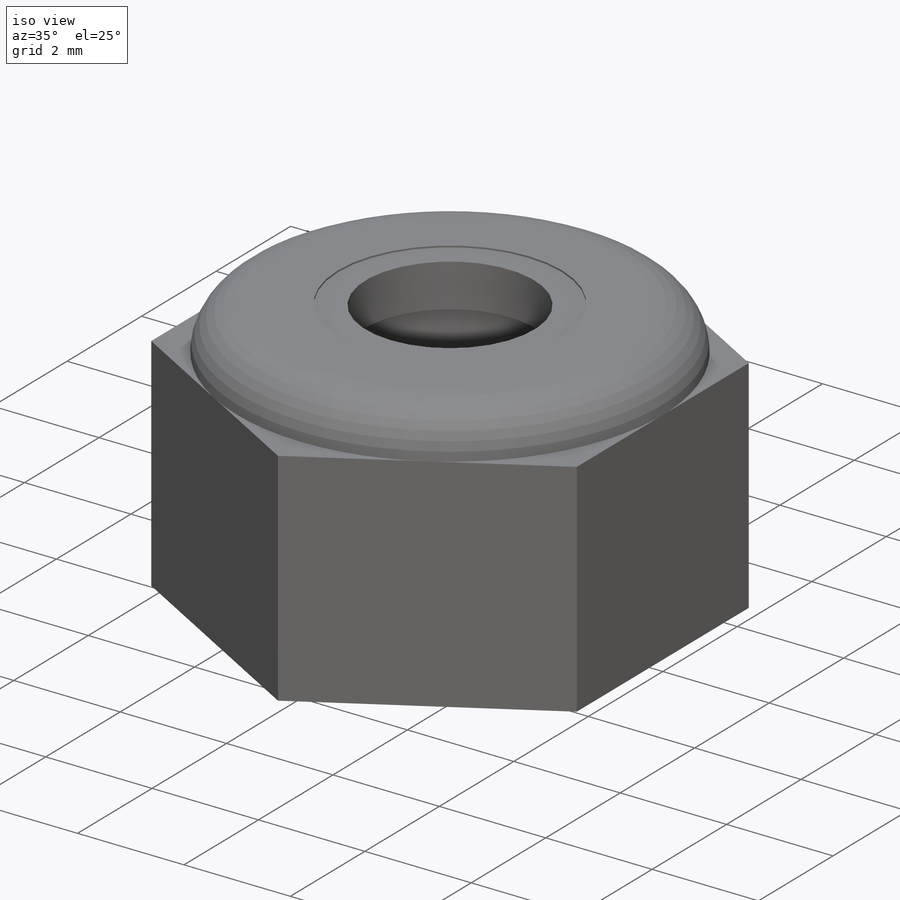
[diagram: iso view]
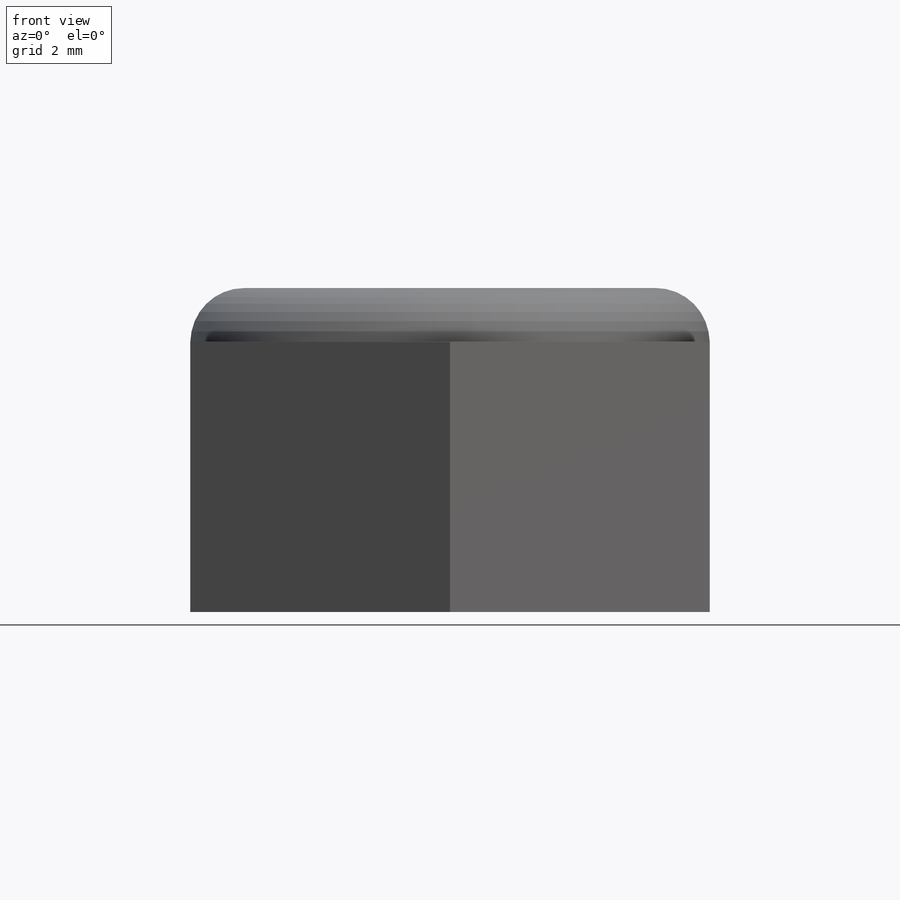
[diagram: front view]
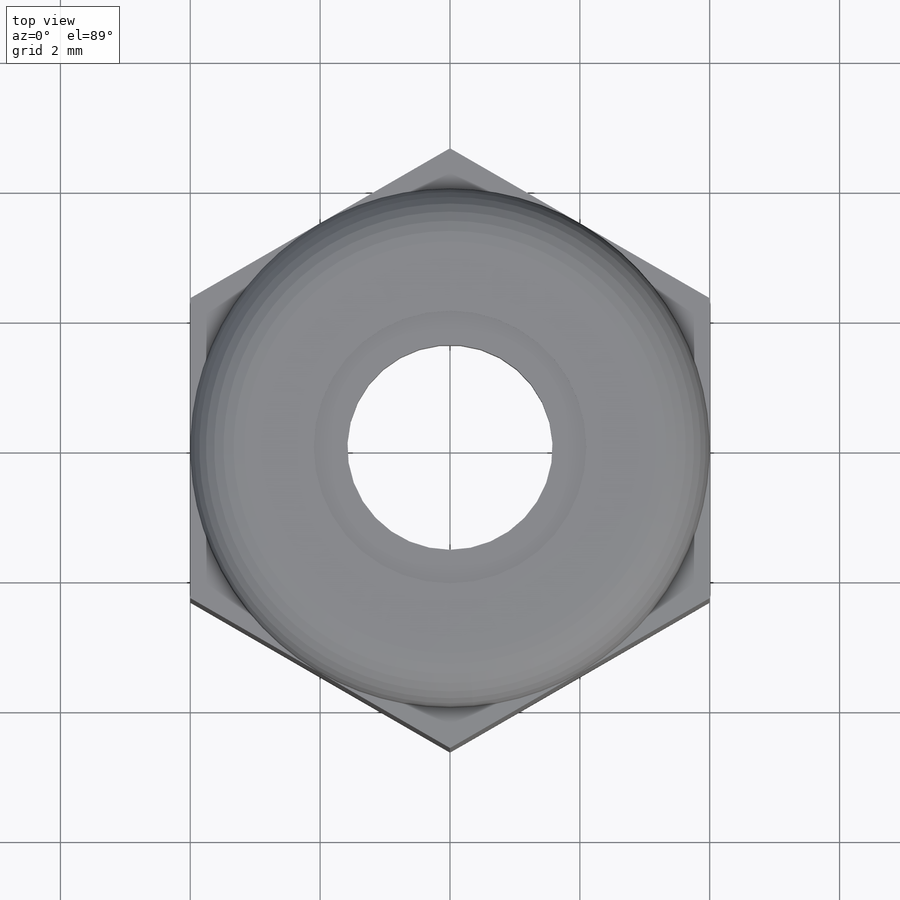
[diagram: top view]
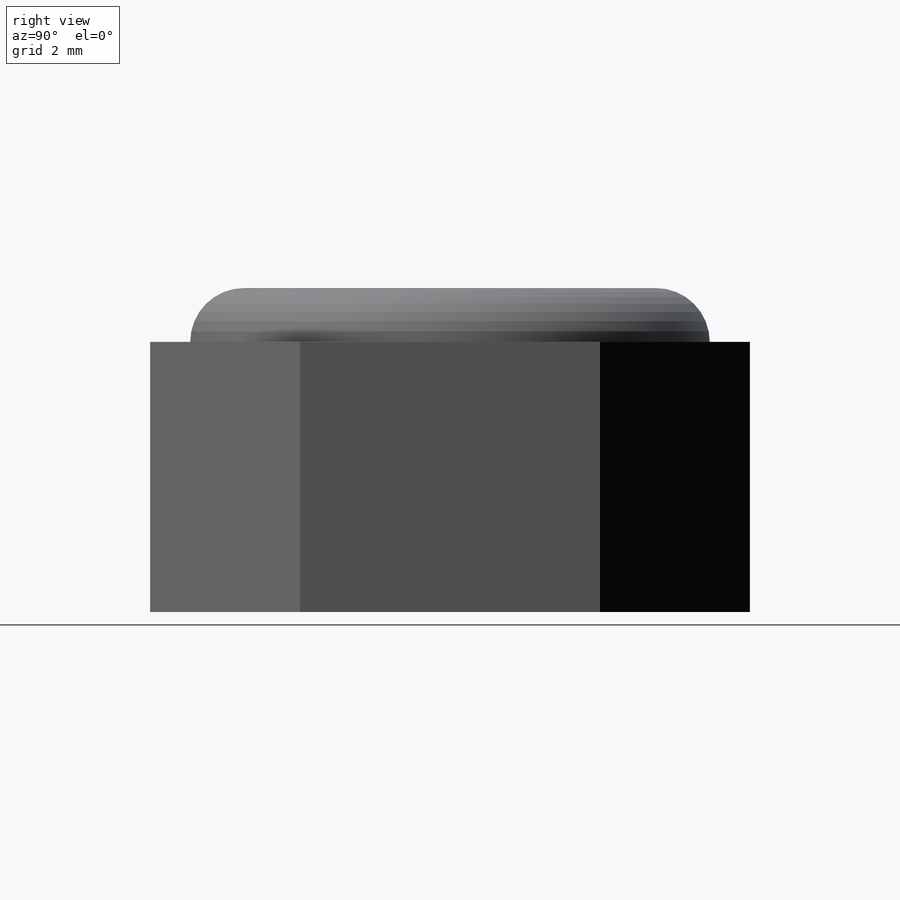
[diagram: right view]
SOLIDWORKS PART (.sldprt)
format: sldprt  version: not decoded by parser v0  size: 231,936 bytes
history: native  units: mm
features: sketch x5, revolve x2, material x1, extrude x1, hole x1 (+13 scaffold rows collapsed)
feature tree (23):
  scaffold x13  (default folders/planes/origin — collapsed)
  material  "Material <not specified>"
  sketch  "Sketch1"  dims[c1.D2=8.0mm c1.D1=~4.618802mm c2.D1=~140.578636deg c3.D1=~4.618802mm c4.D1=0.0deg]
  extrude  "Boss-Extrude1"  Depth=4.16mm
  sketch  "Sketch3"  dims[c1.D2=1.66mm c1.D1=0.83mm c2.D2=0.83mm]
  revolve  "Revolve1"  Angle=360deg
  hole  "Tap Drill for M5x0.8 Tap1"  Diameter=4.2mm Depth=4.99mm
  sketch  "Sketch6"
  sketch  "Sketch7"  dims[hole-wizard template sketch: 60 standard entries collapsed; hole parameters kept: c18.Thru Hole Depth=4.99mm]
  sketch  "Sketch8"  dims[D1=0.52mm D2=0.81mm D3=0.03mm]
  revolve  "Revolve2"  Angle=360deg
decode coverage: 8 of 9 modeling features carry decoded parameters
note: ~ marks probable driven/reference dimensions
note: suppression state not decoded; provenance and decode notes live in map.json
